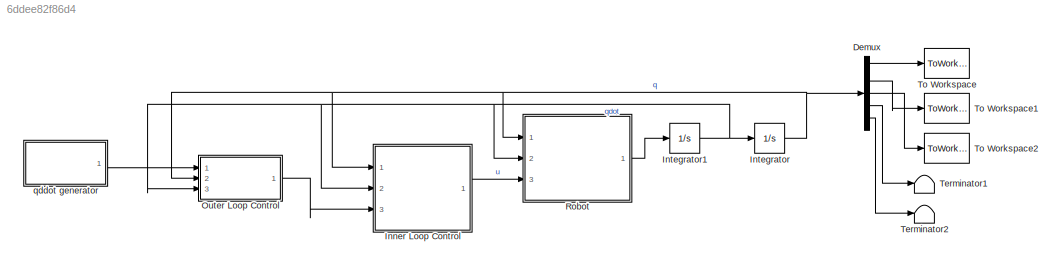
MODEL slx_6ddee82f86d4
KIND model
CONFIG AbsTol = auto
CONFIG EnableMultiTasking = off
CONFIG FixedStep = auto
CONFIG MaxStep = auto
CONFIG MinStep = auto
CONFIG RelTol = 1e-3
CONFIG SampleTimeConstraint = Unconstrained
CONFIG SolverName = VariableStepAuto
CONFIG StartTime = 0.0
CONFIG StopTime = 5
BLOCK [Demux] Demux
  Outputs = 5
  Ports = [1, 5]
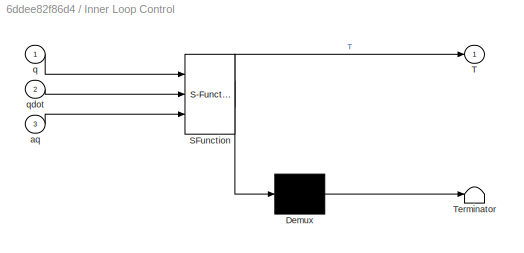
BLOCK [SubSystem] Inner Loop Control
  ErrorFcn = Stateflow.Translate.translate
  PermitHierarchicalResolution = ExplicitOnly
  Ports = [3, 1]
  RequestExecContextInheritance = off
  SFBlockType = MATLAB Function
  TreatAsAtomicUnit = on
BLOCK [Demux] Inner Loop Control/ Demux 
  Outputs = 1
  Ports = [1, 1]
BLOCK [S-Function] Inner Loop Control/ SFunction 
  EnableBusSupport = on
  FunctionName = sf_sfun
  PortCounts = [3 2]
  Ports = [3, 2]
  SFcnIsStateOwnerBlock = off
  SFunctionDeploymentMode = off
  Tag = Stateflow S-Function 2
BLOCK [Terminator] Inner Loop Control/ Terminator 
BLOCK [Outport] Inner Loop Control/T
BLOCK [Inport] Inner Loop Control/aq
  Port = 3
BLOCK [Inport] Inner Loop Control/q
BLOCK [Inport] Inner Loop Control/qdot
  Port = 2
BLOCK [Integrator] Integrator
  InitialCondition = [x0;y0;theta0;phiR0;phiL0]
  Ports = [1, 1]
BLOCK [Integrator] Integrator1
  InitialCondition = [0;0;0;0;0]
  Ports = [1, 1]
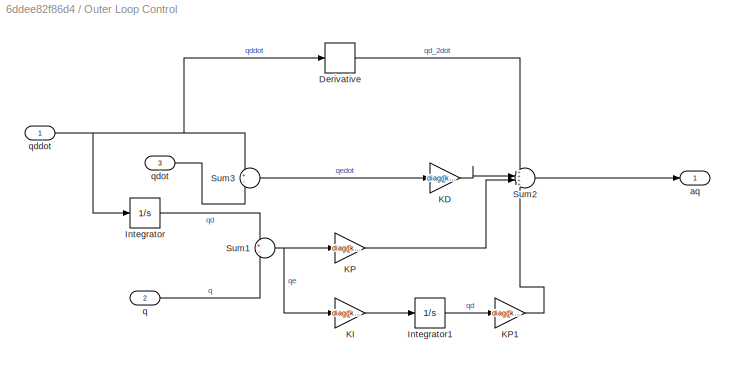
BLOCK [SubSystem] Outer Loop Control
  Ports = [3, 1]
  RequestExecContextInheritance = off
BLOCK [Derivative] Outer Loop Control/Derivative
BLOCK [Integrator] Outer Loop Control/Integrator
  InitialCondition = [0;0;0;0;0]
  Ports = [1, 1]
BLOCK [Integrator] Outer Loop Control/Integrator1
  InitialCondition = [0-x0;0-y0;0-theta0;0-phiR0;0-phiL0]
  Ports = [1, 1]
BLOCK [Gain] Outer Loop Control/KD
  Gain = diag([kd,kd,kd,kd,kd])
  Multiplication = Matrix(K*u)
BLOCK [Gain] Outer Loop Control/KI
  Gain = diag([ki,ki,ki,ki,ki])
  Multiplication = Matrix(K*u)
BLOCK [Gain] Outer Loop Control/KP
  Gain = diag([kp,kp,kp,kp,kp])
  Multiplication = Matrix(K*u)
BLOCK [Gain] Outer Loop Control/KP1
  Gain = diag([kp,kp,kp,kp,kp])
  Multiplication = Matrix(K*u)
BLOCK [Sum] Outer Loop Control/Sum1
  Inputs = +-
  Ports = [2, 1]
BLOCK [Sum] Outer Loop Control/Sum2
  Inputs = ++++
  Ports = [4, 1]
BLOCK [Sum] Outer Loop Control/Sum3
  Inputs = +-
  Ports = [2, 1]
BLOCK [Outport] Outer Loop Control/aq
BLOCK [Inport] Outer Loop Control/q
  Port = 2
BLOCK [Inport] Outer Loop Control/qddot
BLOCK [Inport] Outer Loop Control/qdot
  Port = 3
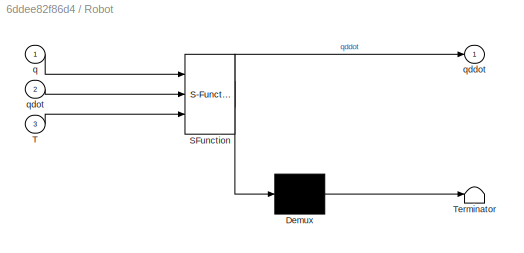
BLOCK [SubSystem] Robot
  ErrorFcn = Stateflow.Translate.translate
  PermitHierarchicalResolution = ExplicitOnly
  Ports = [3, 1]
  RequestExecContextInheritance = off
  SFBlockType = MATLAB Function
  TreatAsAtomicUnit = on
BLOCK [Demux] Robot/ Demux 
  Outputs = 1
  Ports = [1, 1]
BLOCK [S-Function] Robot/ SFunction 
  EnableBusSupport = on
  FunctionName = sf_sfun
  PortCounts = [3 2]
  Ports = [3, 2]
  SFcnIsStateOwnerBlock = off
  SFunctionDeploymentMode = off
  Tag = Stateflow S-Function 1
BLOCK [Terminator] Robot/ Terminator 
BLOCK [Inport] Robot/T
  Port = 3
BLOCK [Inport] Robot/q
BLOCK [Outport] Robot/qddot
BLOCK [Inport] Robot/qdot
  Port = 2
BLOCK [Terminator] Terminator1
BLOCK [Terminator] Terminator2
BLOCK [ToWorkspace] To Workspace
  FixptAsFi = on
  MaxDataPoints = inf
  Ports = [1]
  SampleTime = 0.1
  VariableName = x
BLOCK [ToWorkspace] To Workspace1
  FixptAsFi = on
  MaxDataPoints = inf
  Ports = [1]
  SampleTime = 0.1
  VariableName = y
BLOCK [ToWorkspace] To Workspace2
  FixptAsFi = on
  MaxDataPoints = inf
  Ports = [1]
  SampleTime = 0.1
  VariableName = theta
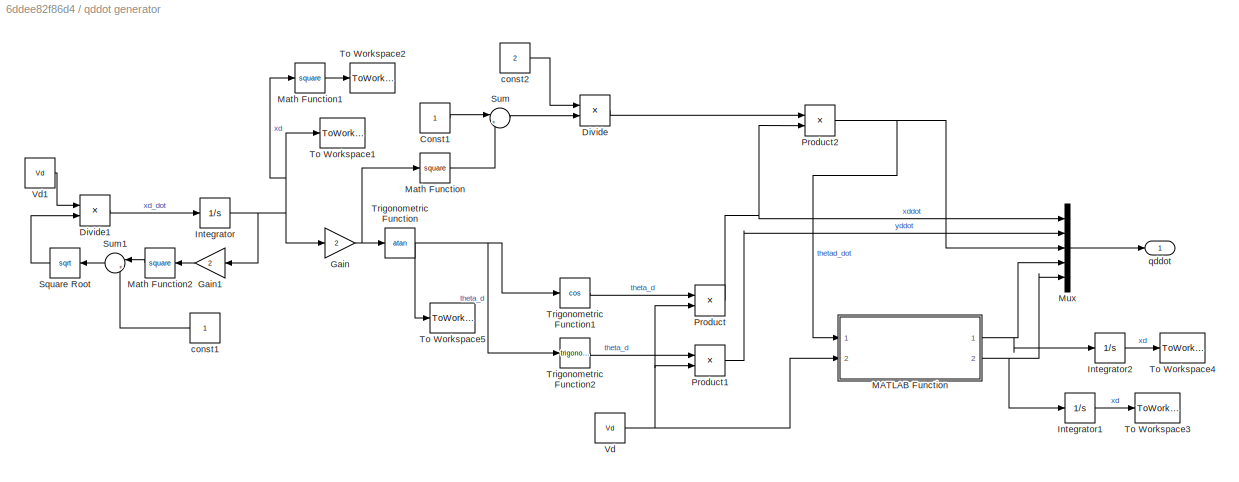
BLOCK [SubSystem] qddot generator
  Ports = [0, 1]
  RequestExecContextInheritance = off
BLOCK [Constant] qddot generator/Const1
BLOCK [Product] qddot generator/Divide
  Inputs = */
  Ports = [2, 1]
BLOCK [Product] qddot generator/Divide1
  Inputs = */
  Ports = [2, 1]
BLOCK [Gain] qddot generator/Gain
  Gain = 2
BLOCK [Gain] qddot generator/Gain1
  Gain = 2
BLOCK [Integrator] qddot generator/Integrator
  Ports = [1, 1]
BLOCK [Integrator] qddot generator/Integrator1
  Ports = [1, 1]
BLOCK [Integrator] qddot generator/Integrator2
  Ports = [1, 1]
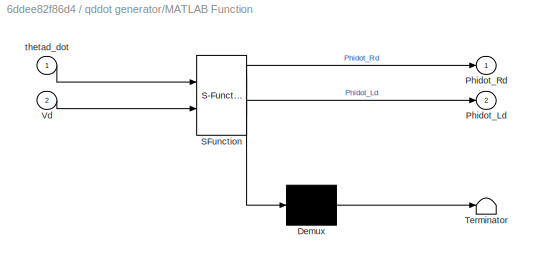
BLOCK [SubSystem] qddot generator/MATLAB Function
  ErrorFcn = Stateflow.Translate.translate
  PermitHierarchicalResolution = ExplicitOnly
  Ports = [2, 2]
  RequestExecContextInheritance = off
  SFBlockType = MATLAB Function
  TreatAsAtomicUnit = on
BLOCK [Demux] qddot generator/MATLAB Function/ Demux 
  Outputs = 1
  Ports = [1, 1]
BLOCK [S-Function] qddot generator/MATLAB Function/ SFunction 
  EnableBusSupport = on
  FunctionName = sf_sfun
  PortCounts = [2 3]
  Ports = [2, 3]
  SFcnIsStateOwnerBlock = off
  SFunctionDeploymentMode = off
  Tag = Stateflow S-Function 3
BLOCK [Terminator] qddot generator/MATLAB Function/ Terminator 
BLOCK [Outport] qddot generator/MATLAB Function/Phidot_Ld
  Port = 2
BLOCK [Outport] qddot generator/MATLAB Function/Phidot_Rd
BLOCK [Inport] qddot generator/MATLAB Function/Vd
  Port = 2
BLOCK [Inport] qddot generator/MATLAB Function/thetad_dot
BLOCK [Math] qddot generator/Math Function
  Operator = square
  Ports = [1, 1]
BLOCK [Math] qddot generator/Math Function1
  Operator = square
  Ports = [1, 1]
BLOCK [Math] qddot generator/Math Function2
  Operator = square
  Ports = [1, 1]
BLOCK [Mux] qddot generator/Mux
  DisplayOption = bar
  Inputs = 5
  Ports = [5, 1]
BLOCK [Product] qddot generator/Product
  Ports = [2, 1]
BLOCK [Product] qddot generator/Product1
  Ports = [2, 1]
BLOCK [Product] qddot generator/Product2
  Ports = [2, 1]
BLOCK [Sqrt] qddot generator/Square Root
BLOCK [Sum] qddot generator/Sum
  Inputs = |++
  Ports = [2, 1]
BLOCK [Sum] qddot generator/Sum1
  Inputs = |++
  Ports = [2, 1]
BLOCK [ToWorkspace] qddot generator/To Workspace1
  FixptAsFi = on
  MaxDataPoints = inf
  Ports = [1]
  SampleTime = 0.1
  VariableName = xd
BLOCK [ToWorkspace] qddot generator/To Workspace2
  FixptAsFi = on
  MaxDataPoints = inf
  Ports = [1]
  SampleTime = 0.1
  VariableName = yd
BLOCK [ToWorkspace] qddot generator/To Workspace3
  FixptAsFi = on
  MaxDataPoints = inf
  Ports = [1]
  SampleTime = 0.1
  VariableName = phiRd
BLOCK [ToWorkspace] qddot generator/To Workspace4
  FixptAsFi = on
  MaxDataPoints = inf
  Ports = [1]
  SampleTime = 0.1
  VariableName = phiLd
BLOCK [ToWorkspace] qddot generator/To Workspace5
  FixptAsFi = on
  MaxDataPoints = inf
  Ports = [1]
  SampleTime = 0.1
  VariableName = thetad
BLOCK [Trigonometry] qddot generator/Trigonometric Function
  Operator = atan
  Ports = [1, 1]
BLOCK [Trigonometry] qddot generator/Trigonometric Function1
  Operator = cos
  Ports = [1, 1]
BLOCK [Trigonometry] qddot generator/Trigonometric Function2
  Ports = [1, 1]
BLOCK [Constant] qddot generator/Vd
  Value = Vd
BLOCK [Constant] qddot generator/Vd1
  Value = Vd
BLOCK [Constant] qddot generator/const1
BLOCK [Constant] qddot generator/const2
  Value = 2
BLOCK [Outport] qddot generator/qddot
LINE Demux:1 -> To Workspace:1
LINE Demux:2 -> To Workspace1:1
LINE Demux:3 -> To Workspace2:1
LINE Demux:4 -> Terminator1:1
LINE Demux:5 -> Terminator2:1
LINE Inner Loop Control:1 -> Robot:3
NET Integrator1:1 -> Inner Loop Control:2, Integrator:1, Outer Loop Control:3, Robot:2
NET Integrator:1 -> Demux:1, Inner Loop Control:1, Outer Loop Control:2, Robot:1
LINE Outer Loop Control/Derivative:1 -> Outer Loop Control/Sum2:1
LINE Outer Loop Control/Integrator1:1 -> Outer Loop Control/KP1:1
LINE Outer Loop Control/Integrator:1 -> Outer Loop Control/Sum1:1
LINE Outer Loop Control/KD:1 -> Outer Loop Control/Sum2:2
LINE Outer Loop Control/KI:1 -> Outer Loop Control/Integrator1:1
LINE Outer Loop Control/KP1:1 -> Outer Loop Control/Sum2:4
LINE Outer Loop Control/KP:1 -> Outer Loop Control/Sum2:3
NET Outer Loop Control/Sum1:1 -> Outer Loop Control/KI:1, Outer Loop Control/KP:1
LINE Outer Loop Control/Sum2:1 -> Outer Loop Control/aq:1
LINE Outer Loop Control/Sum3:1 -> Outer Loop Control/KD:1
LINE Outer Loop Control/q:1 -> Outer Loop Control/Sum1:2
NET Outer Loop Control/qddot:1 -> Outer Loop Control/Derivative:1, Outer Loop Control/Integrator:1, Outer Loop Control/Sum3:1
LINE Outer Loop Control/qdot:1 -> Outer Loop Control/Sum3:2
LINE Outer Loop Control:1 -> Inner Loop Control:3
LINE Robot:1 -> Integrator1:1
LINE qddot generator/Const1:1 -> qddot generator/Sum:1
LINE qddot generator/Divide1:1 -> qddot generator/Integrator:1
LINE qddot generator/Divide:1 -> qddot generator/Product2:1
LINE qddot generator/Gain1:1 -> qddot generator/Math Function2:1
NET qddot generator/Gain:1 -> qddot generator/Math Function:1, qddot generator/Trigonometric Function:1
LINE qddot generator/Integrator1:1 -> qddot generator/To Workspace3:1
LINE qddot generator/Integrator2:1 -> qddot generator/To Workspace4:1
NET qddot generator/Integrator:1 -> qddot generator/Gain1:1, qddot generator/Gain:1, qddot generator/Math Function1:1, qddot generator/To Workspace1:1
NET qddot generator/MATLAB Function:1 -> qddot generator/Integrator2:1, qddot generator/Mux:4
NET qddot generator/MATLAB Function:2 -> qddot generator/Integrator1:1, qddot generator/Mux:5
LINE qddot generator/Math Function1:1 -> qddot generator/To Workspace2:1
LINE qddot generator/Math Function2:1 -> qddot generator/Sum1:1
LINE qddot generator/Math Function:1 -> qddot generator/Sum:2
LINE qddot generator/Mux:1 -> qddot generator/qddot:1
LINE qddot generator/Product1:1 -> qddot generator/Mux:2
NET qddot generator/Product2:1 -> qddot generator/MATLAB Function:1, qddot generator/Mux:3
NET qddot generator/Product:1 -> qddot generator/Mux:1, qddot generator/Product2:2
LINE qddot generator/Square Root:1 -> qddot generator/Divide1:2
LINE qddot generator/Sum1:1 -> qddot generator/Square Root:1
LINE qddot generator/Sum:1 -> qddot generator/Divide:2
LINE qddot generator/Trigonometric Function1:1 -> qddot generator/Product:1
LINE qddot generator/Trigonometric Function2:1 -> qddot generator/Product1:1
NET qddot generator/Trigonometric Function:1 -> qddot generator/To Workspace5:1, qddot generator/Trigonometric Function1:1, qddot generator/Trigonometric Function2:1
LINE qddot generator/Vd1:1 -> qddot generator/Divide1:1
NET qddot generator/Vd:1 -> qddot generator/MATLAB Function:2, qddot generator/Product1:2, qddot generator/Product:2
LINE qddot generator/const1:1 -> qddot generator/Sum1:2
LINE qddot generator/const2:1 -> qddot generator/Divide:1
LINE qddot generator:1 -> Outer Loop Control:1
note: NET lines group one-source signal fan-out (src -> all destinations, sorted); 1:1 wires keep LINE
CHART Robot states=1 transitions=1
  STATE_LABEL 'eML_blk_kernel()'
  STATE_LABEL 'SCRIPT:\nfunction qddot  = fcn1(q,qdot,T)\n\ntheta=q(3);\nthetadot=qdot(3);\n\n% parameters\nmB=2;\nmW=0.05;\nW=0.15;\nR=0.06;\nt=0.01;\nd=0;\n\nIyy=mW*R^2/2;\nIzz=mW*(3*R^2+t^2)/12;\nIB=0.0225;\n\nmT=mB+2*mW;\nIT=IB+2*mW*W^2+2*Izz;\n\nC=[1 0 0 R*cos(theta)/2 -R*cos(theta)/2;\n   0 1 0 R*sin(theta)/2 -R*sin(theta)/2;\n   0 0 1 0.5*R/W         0.5*R/W];\n\nCdot=[0 0 0 -R*sin(theta)*thetadot/2    R*sin(theta)*thetadot/2;\n  ...<+564ch>'
CHART Inner Loop Control states=1 transitions=1
  STATE_LABEL 'eML_blk_kernel()'
  STATE_LABEL 'SCRIPT:\nfunction T = fcn(q, qdot, aq)\n\ntheta=q(3);\nthetadot=qdot(3);\n\n% parameters\nmB=2;\nmW=0.05;\nW=0.15;\nR=0.06;\nt=0.01;\nd=0;\n\nIyy=mW*R^2/2;\nIzz=mW*(3*R^2+t^2)/12;\nIB=0.0225;\n\nmT=mB+2*mW;\nIT=IB+2*mW*W^2+2*Izz;\n\nC=[1 0 0 R*cos(theta)/2 -R*cos(theta)/2;\n   0 1 0 R*sin(theta)/2 -R*sin(theta)/2;\n   0 0 1 0.5*R/W         0.5*R/W];\n\nCdot=[0 0 0 -R*sin(theta)*thetadot/2    R*sin(theta)*thetadot/2;\n     ...<+575ch>'
CHART qddot generator/MATLAB Function states=1 transitions=1
  STATE_LABEL 'eML_blk_kernel()'
  STATE_LABEL 'SCRIPT:\nfunction [Phidot_Rd,Phidot_Ld] = fcn(thetad_dot,Vd)\n\nR=0.06;\nL=0.3;\n\nA=[R/2 +R/2;R/L -R/L];\n\ntemp=inv(A)*[Vd;thetad_dot];\n\nPhidot_Rd=-temp(1);\nPhidot_Ld=temp(2);\n'
CHART  states=0 transitions=0
CHART  states=0 transitions=0
CHART  states=0 transitions=0
